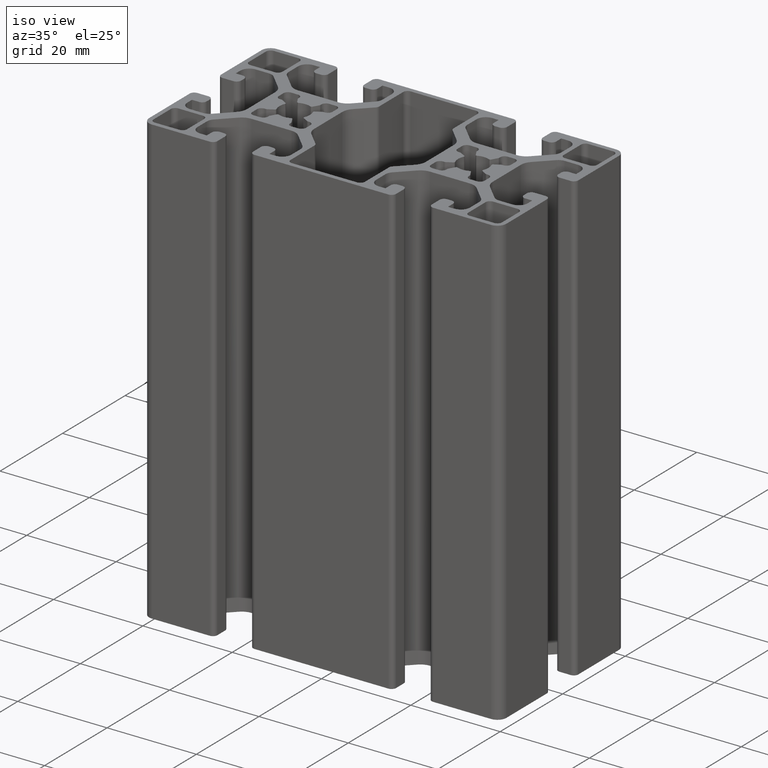
[diagram: clean part render]
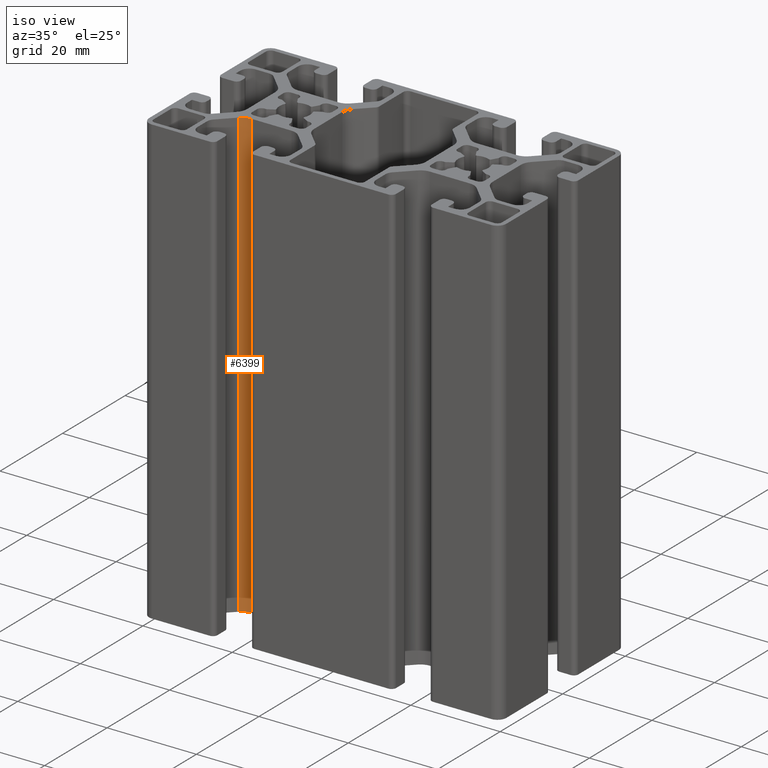
[diagram: same view with one face highlighted and labeled with its STEP entity id]
A machine part, iso view. The second image highlights one B-rep face of the part: STEP entity #6399.
In plain terms, the highlighted cylindrical surface (edge-blend (fillet) strip) has radius 3 mm, axis along (0, 0, 1).
Its self-contained STEP definition (entity closure, byte-faithful):
#73=CIRCLE('',#6780,2.99999999999998);
#74=CIRCLE('',#6781,2.99999999999998);
#387=CYLINDRICAL_SURFACE('',#6779,2.99999999999998);
#579=FACE_OUTER_BOUND('',#913,.T.);
#913=EDGE_LOOP('',(#4379,#4380,#4381,#4382));
#1310=LINE('',#9643,#1970);
#1311=LINE('',#9649,#1971);
#1970=VECTOR('',#7636,100.);
#1971=VECTOR('',#7643,100.);
#2629=VERTEX_POINT('',#9639);
#2630=VERTEX_POINT('',#9641);
#2631=VERTEX_POINT('',#9645);
#2632=VERTEX_POINT('',#9647);
#3338=EDGE_CURVE('',#2630,#2629,#1310,.T.);
#3339=EDGE_CURVE('',#2629,#2631,#73,.T.);
#3340=EDGE_CURVE('',#2632,#2630,#74,.T.);
#3341=EDGE_CURVE('',#2632,#2631,#1311,.T.);
#4379=ORIENTED_EDGE('',*,*,#3339,.F.);
#4380=ORIENTED_EDGE('',*,*,#3338,.F.);
#4381=ORIENTED_EDGE('',*,*,#3340,.F.);
#4382=ORIENTED_EDGE('',*,*,#3341,.T.);
#6399=ADVANCED_FACE('',(#579),#387,.F.);
#6779=AXIS2_PLACEMENT_3D('',#9644,#7637,#7638);
#6780=AXIS2_PLACEMENT_3D('',#9646,#7639,#7640);
#6781=AXIS2_PLACEMENT_3D('',#9648,#7641,#7642);
#7636=DIRECTION('',(0.,0.,1.));
#7637=DIRECTION('center_axis',(0.,0.,1.));
#7638=DIRECTION('ref_axis',(0.,1.,0.));
#7639=DIRECTION('center_axis',(0.,0.,-1.));
#7640=DIRECTION('ref_axis',(0.,1.,0.));
#7641=DIRECTION('center_axis',(0.,0.,1.));
#7642=DIRECTION('ref_axis',(0.,1.,0.));
#7643=DIRECTION('',(0.,0.,1.));
#9639=CARTESIAN_POINT('',(-26.610912703474,-8.37867965644034,100.));
#9641=CARTESIAN_POINT('',(-26.610912703474,-8.37867965644034,0.));
#9643=CARTESIAN_POINT('',(-26.610912703474,-8.37867965644034,0.));
#9644=CARTESIAN_POINT('Origin',(-24.4895923599144,-10.5,0.));
#9645=CARTESIAN_POINT('',(-24.4895923599144,-7.5,100.));
#9646=CARTESIAN_POINT('Origin',(-24.4895923599144,-10.5,100.));
#9647=CARTESIAN_POINT('',(-24.4895923599144,-7.5,0.));
#9648=CARTESIAN_POINT('Origin',(-24.4895923599144,-10.5,0.));
#9649=CARTESIAN_POINT('',(-24.4895923599144,-7.5,0.));